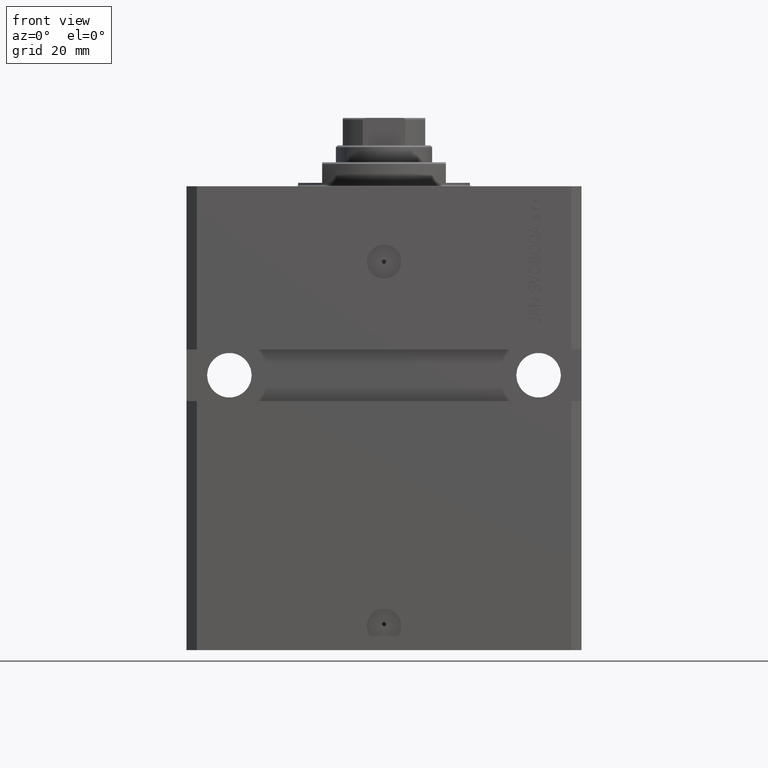
[diagram: clean part render]
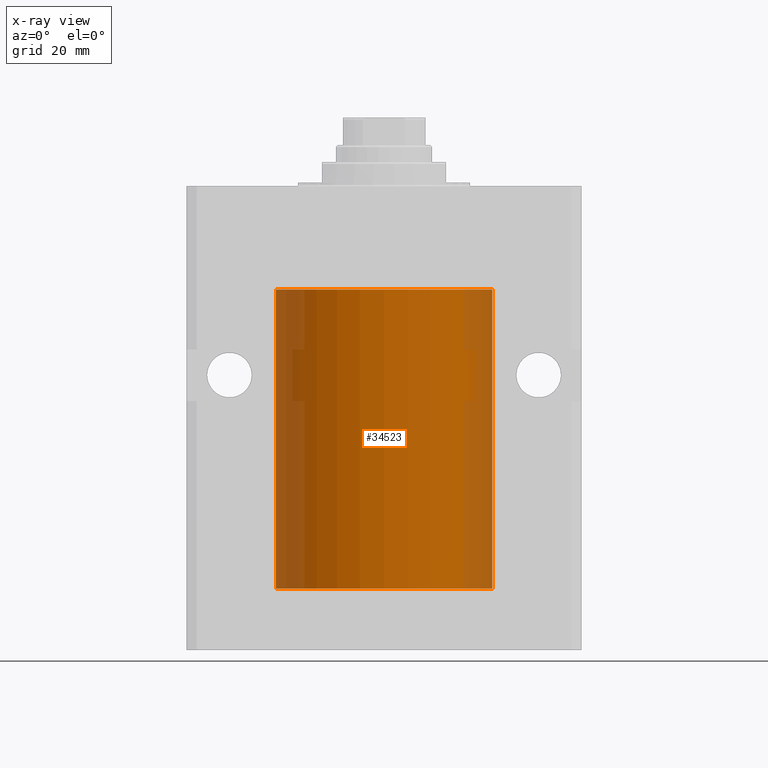
[diagram: x-ray — body ghosted, one internal face saturated and labeled with its STEP entity id]
A machine part, front view, then the same camera in x-ray: the body is ghosted and one INTERNAL B-rep face — a face not visible from any outside direction — is saturated and labeled: STEP entity #34523.
In plain terms, the highlighted cylindrical surface (partial cylindrical patch) has radius 31.5 mm, axis along (0, 0, 1).
Its self-contained STEP definition (entity closure, byte-faithful):
#916 = EDGE_CURVE ( 'NONE', #43232, #13152, #42077, .T. ) ;
#1194 = DIRECTION ( 'NONE',  ( 0.000000000000000000, 0.000000000000000000, 1.000000000000000000 ) ) ;
#1735 = DIRECTION ( 'NONE',  ( 0.000000000000000000, 0.000000000000000000, 1.000000000000000000 ) ) ;
#2320 = LINE ( 'NONE', #44801, #33138 ) ;
#2476 = CARTESIAN_POINT ( 'NONE',  ( -31.50000000000000000, 3.857637417314162689E-15, -30.10000000000000142 ) ) ;
#4252 = CIRCLE ( 'NONE', #10950, 31.50000000000000000 ) ;
#4740 = EDGE_CURVE ( 'NONE', #13152, #6005, #35435, .T. ) ;
#4996 = AXIS2_PLACEMENT_3D ( 'NONE', #6214, #1194, #36716 ) ;
#6005 = VERTEX_POINT ( 'NONE', #6316 ) ;
#6214 = CARTESIAN_POINT ( 'NONE',  ( 0.000000000000000000, 0.000000000000000000, -30.10000000000000142 ) ) ;
#6316 = CARTESIAN_POINT ( 'NONE',  ( -31.50000000000000000, -2.862469004324082213E-15, -113.3750000000000000 ) ) ;
#7538 = CARTESIAN_POINT ( 'NONE',  ( -31.50000000000000000, 3.857637417314162689E-15, -117.0999999999999943 ) ) ;
#8688 = CARTESIAN_POINT ( 'NONE',  ( -31.50000000000000000, 3.857637417314162689E-15, -117.0999999999999943 ) ) ;
#8937 = ORIENTED_EDGE ( 'NONE', *, *, #4740, .T. ) ;
#9680 = CARTESIAN_POINT ( 'NONE',  ( -31.50000000000006395, 3.480981129463732167E-13, -114.6250000000032401 ) ) ;
#10369 = CARTESIAN_POINT ( 'NONE',  ( 31.50000000000000000, 0.000000000000000000, -30.10000000000000142 ) ) ;
#10479 = CYLINDRICAL_SURFACE ( 'NONE', #13679, 31.50000000000000000 ) ;
#10950 = AXIS2_PLACEMENT_3D ( 'NONE', #16814, #1735, #16348 ) ;
#12390 = CARTESIAN_POINT ( 'NONE',  ( -31.49527619204366857, -0.5575625051463252158, -113.6738430774043564 ) ) ;
#12836 = CARTESIAN_POINT ( 'NONE',  ( -31.49852099238383119, -0.3263081977449447946, -114.5574125724066619 ) ) ;
#13152 = VERTEX_POINT ( 'NONE', #9680 ) ;
#13679 = AXIS2_PLACEMENT_3D ( 'NONE', #14198, #18766, #38350 ) ;
#14198 = CARTESIAN_POINT ( 'NONE',  ( 0.000000000000000000, 0.000000000000000000, -117.0999999999999943 ) ) ;
#14519 = LINE ( 'NONE', #7538, #38303 ) ;
#14714 = CARTESIAN_POINT ( 'NONE',  ( 31.50000000000000000, 0.000000000000000000, -117.0999999999999943 ) ) ;
#16348 = DIRECTION ( 'NONE',  ( 1.000000000000000000, 0.000000000000000000, 0.000000000000000000 ) ) ;
#16814 = CARTESIAN_POINT ( 'NONE',  ( 0.000000000000000000, 0.000000000000000000, -117.0999999999999943 ) ) ;
#17103 = VECTOR ( 'NONE', #30706, 1000.000000000000000 ) ;
#18746 = ORIENTED_EDGE ( 'NONE', *, *, #41569, .T. ) ;
#18766 = DIRECTION ( 'NONE',  ( -0.000000000000000000, -0.000000000000000000, 1.000000000000000000 ) ) ;
#19376 = CARTESIAN_POINT ( 'NONE',  ( -31.50000000000000000, -0.1631292369235416984, -114.6250000000001563 ) ) ;
#19843 = CARTESIAN_POINT ( 'NONE',  ( -31.50000000000006395, 3.480981129463732167E-13, -114.6250000000032401 ) ) ;
#19874 = ORIENTED_EDGE ( 'NONE', *, *, #40099, .F. ) ;
#20447 = DIRECTION ( 'NONE',  ( -0.000000000000000000, -0.000000000000000000, 1.000000000000000000 ) ) ;
#21078 = EDGE_LOOP ( 'NONE', ( #34425, #24811, #8937, #24575, #18746, #19874 ) ) ;
#24575 = ORIENTED_EDGE ( 'NONE', *, *, #44157, .T. ) ;
#24811 = ORIENTED_EDGE ( 'NONE', *, *, #916, .T. ) ;
#25032 = CIRCLE ( 'NONE', #4996, 31.50000000000000000 ) ;
#26572 = CARTESIAN_POINT ( 'NONE',  ( -31.50000000000000000, -2.862469004324082213E-15, -113.3750000000000000 ) ) ;
#26617 = EDGE_CURVE ( 'NONE', #43232, #28601, #4252, .T. ) ;
#28601 = VERTEX_POINT ( 'NONE', #14714 ) ;
#29488 = VERTEX_POINT ( 'NONE', #10369 ) ;
#29592 = CARTESIAN_POINT ( 'NONE',  ( -31.49999999999999289, -0.1651478413229920950, -113.3749999999999858 ) ) ;
#30041 = CARTESIAN_POINT ( 'NONE',  ( -31.49851430197701063, -0.3269482044720602998, -113.4429011246694188 ) ) ;
#30706 = DIRECTION ( 'NONE',  ( -0.000000000000000000, -0.000000000000000000, 1.000000000000000000 ) ) ;
#31402 = CARTESIAN_POINT ( 'NONE',  ( -31.50000000000000000, 3.857637417314162689E-15, -117.0999999999999943 ) ) ;
#33138 = VECTOR ( 'NONE', #20447, 1000.000000000000000 ) ;
#34425 = ORIENTED_EDGE ( 'NONE', *, *, #26617, .F. ) ;
#34523 = ADVANCED_FACE ( 'NONE', ( #42285 ), #10479, .F. ) ;
#34639 = VERTEX_POINT ( 'NONE', #2476 ) ;
#35435 = B_SPLINE_CURVE_WITH_KNOTS ( 'NONE', 3,
 ( #19843, #19376, #12836, #41164, #37245, #44429, #12390, #30041, #29592, #26572 ),
 .UNSPECIFIED., .F., .F.,
 ( 4, 2, 2, 2, 4 ),
 ( 0.001954083649707762538, 0.002442494148669354520, 0.002930904647630946935, 0.003419315146592538917, 0.003907725645554130899 ),
 .UNSPECIFIED. ) ;
#36329 = DIRECTION ( 'NONE',  ( -0.000000000000000000, -0.000000000000000000, 1.000000000000000000 ) ) ;
#36716 = DIRECTION ( 'NONE',  ( 1.000000000000000000, 0.000000000000000000, 0.000000000000000000 ) ) ;
#37245 = CARTESIAN_POINT ( 'NONE',  ( -31.49380174372966223, -0.6248613812773637921, -114.1653655539884369 ) ) ;
#38303 = VECTOR ( 'NONE', #36329, 1000.000000000000000 ) ;
#38350 = DIRECTION ( 'NONE',  ( 1.000000000000000000, 0.000000000000000000, 0.000000000000000000 ) ) ;
#40099 = EDGE_CURVE ( 'NONE', #28601, #29488, #2320, .T. ) ;
#41164 = CARTESIAN_POINT ( 'NONE',  ( -31.49528704891774211, -0.5569519313505083558, -114.3270938121662539 ) ) ;
#41569 = EDGE_CURVE ( 'NONE', #34639, #29488, #25032, .T. ) ;
#42077 = LINE ( 'NONE', #31402, #17103 ) ;
#42285 = FACE_OUTER_BOUND ( 'NONE', #21078, .T. ) ;
#43232 = VERTEX_POINT ( 'NONE', #8688 ) ;
#44157 = EDGE_CURVE ( 'NONE', #6005, #34639, #14519, .T. ) ;
#44429 = CARTESIAN_POINT ( 'NONE',  ( -31.49379625064871391, -0.6251381781549172345, -113.8356839311847466 ) ) ;
#44801 = CARTESIAN_POINT ( 'NONE',  ( 31.50000000000000000, 0.000000000000000000, -117.0999999999999943 ) ) ;